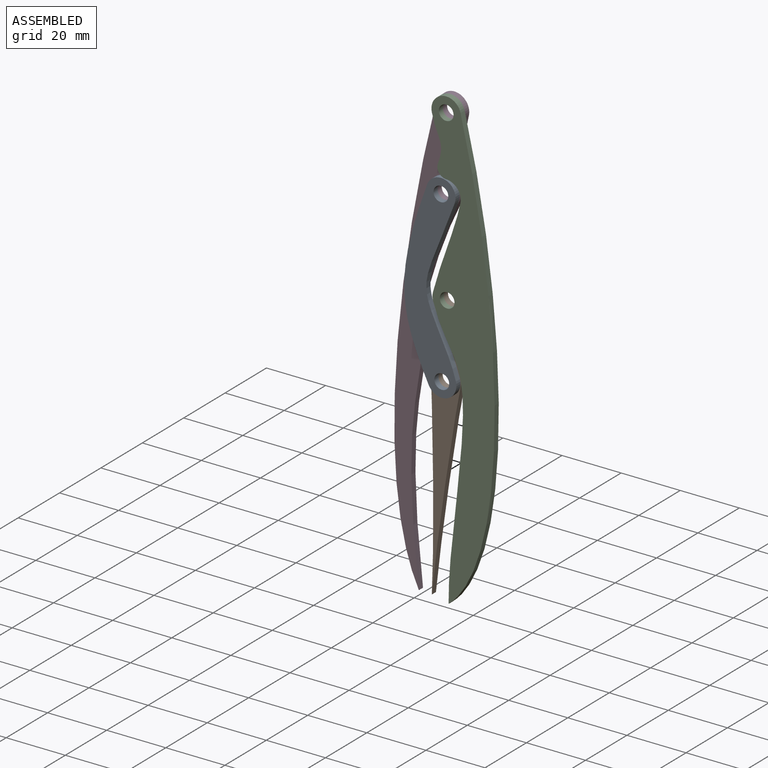
[diagram: assembled view]
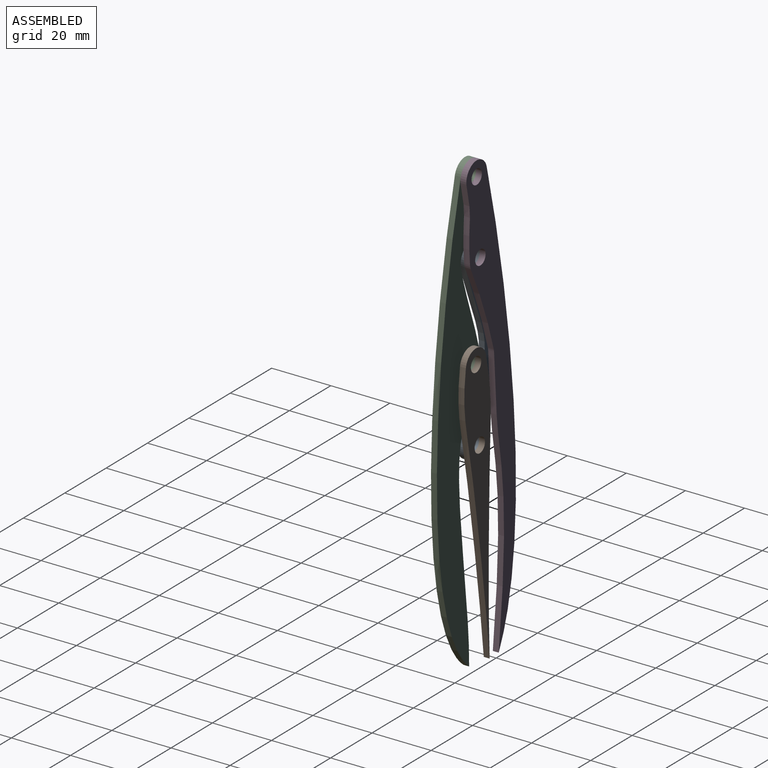
[diagram: assembled view, second angle]
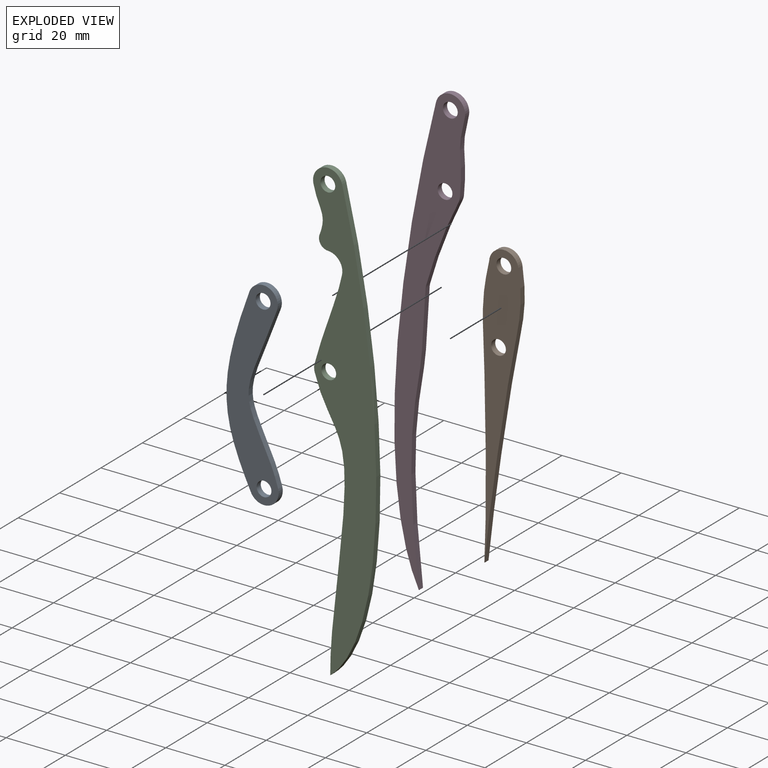
[diagram: exploded view]
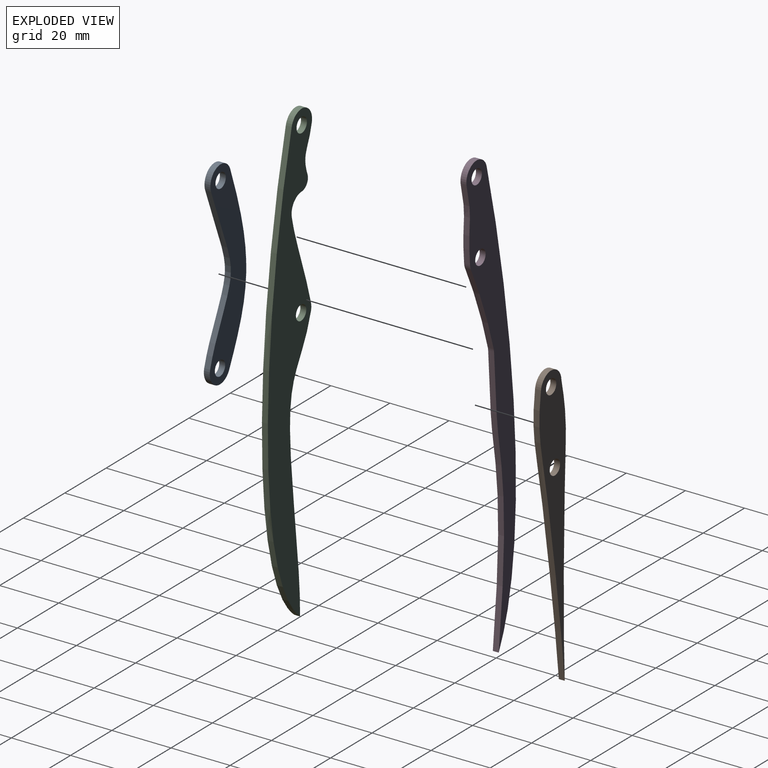
[diagram: exploded view, second angle]
ASSEMBLY  parts=4 mates=4
PART A: 8 faces, bbox 20.2x2x67.2 mm
  f0: extruded ~61.27x8.24mm, area 127.6mm2, adj f1,f5,f6,f7
  f1: cylinder r=4.95mm len=9.41mm, axis (0,1,0), area 29.3mm2, adj f0,f2,f6,f7
  f2: extruded ~54.26x10.02mm, area 115.9mm2, adj f1,f5,f6,f7
  f3: cylinder r=2.5mm len=5mm, axis (0,1,0), area 31.4mm2, adj f6,f7
  f4: cylinder r=2.5mm len=5mm, axis (0,1,0), area 31.4mm2, adj f6,f7
  f5: cylinder r=4.95mm len=9.56mm, axis (0,1,0), area 31mm2, adj f0,f2,f6,f7
  f6: plane 67.2x20.18mm, normal (0,-1,0), area 587.9mm2, adj f0,f1,f2,f3,f4,f5
  f7: plane 67.2x20.18mm, normal (0,1,0), area 587.9mm2, adj f0,f1,f2,f3,f4,f5
PART B: 7 faces, bbox 14.2x2x97.7 mm
  f0: cylinder r=4.97mm len=9.82mm, axis (0,1,0), area 29.1mm2, adj f1,f4,f5,f6
  f1: extruded ~92.7x5.65mm, area 186mm2, adj f0,f4,f5,f6
  f2: cylinder r=2.5mm len=5mm, axis (0,1,0), area 31.4mm2, adj f5,f6
  f3: cylinder r=2.5mm len=5mm, axis (0,1,0), area 31.4mm2, adj f5,f6
  f4: extruded ~93.75x6.83mm, area 188.3mm2, adj f0,f1,f5,f6
  f5: plane 97.66x14.17mm, normal (0,-1,0), area 579mm2, adj f0,f1,f2,f3,f4
  f6: plane 97.66x14.17mm, normal (0,1,0), area 579mm2, adj f0,f1,f2,f3,f4
PART C: 12 faces, bbox 27.7x2x155 mm
  f0: extruded ~151.22x15.58mm, area 311.5mm2, adj f1,f9,f10,f11
  f1: cylinder r=5mm len=9.85mm, axis (0,1,0), area 31mm2, adj f0,f2,f10,f11
  f2: extruded ~15.11x3.17mm, area 31.6mm2, adj f1,f3,f10,f11
  f3: cylinder r=3.09mm len=4.2mm, axis (0,1,0), area 11.8mm2, adj f2,f4,f10,f11
  f4: cylinder r=5.05mm len=6mm, axis (0,1,0), area 17.5mm2, adj f3,f5,f10,f11
  f5: extruded ~29.75x9.32mm, area 62.4mm2, adj f4,f6,f10,f11
  f6: cylinder r=4.95mm len=2.53mm, axis (0,1,0), area 5.1mm2, adj f5,f9,f10,f11
  f7: cylinder r=2.5mm len=5mm, axis (0,1,0), area 31.4mm2, adj f10,f11
  f8: cylinder r=2.5mm len=5mm, axis (0,1,0), area 31.4mm2, adj f10,f11
  f9: extruded ~91.36x10.14mm, area 187.3mm2, adj f0,f6,f10,f11
  f10: plane 155x27.73mm, normal (0,-1,0), area 1676.3mm2, adj f0,f1,f2,f3,f4,f5,f6,f7
  f11: plane 155x27.73mm, normal (0,1,0), area 1676.3mm2, adj f0,f1,f2,f3,f4,f5,f6,f7
PART D: 11 faces, bbox 22.8x2x155 mm
  f0: extruded ~24.6x2mm, area 49.4mm2, adj f1,f7,f9,f10
  f1: cylinder r=5mm len=9.92mm, axis (0,1,0), area 31.5mm2, adj f0,f2,f9,f10
  f2: extruded ~150.9x12.11mm, area 306.3mm2, adj f1,f3,f9,f10
  f3: extruded ~92.7x5.35mm, area 186.2mm2, adj f2,f4,f9,f10
  f4: cylinder r=4.95mm len=2mm, axis (0,1,0), area 1.8mm2, adj f3,f5,f9,f10
  f5: extruded ~28.97x9.05mm, area 60.8mm2, adj f4,f7,f9,f10
  f6: cylinder r=2.5mm len=5mm, axis (0,1,0), area 31.4mm2, adj f9,f10
  f7: cylinder r=5.05mm len=2mm, axis (0,1,0), area 3.8mm2, adj f0,f5,f9,f10
  f8: cylinder r=2.5mm len=5mm, axis (0,1,0), area 31.4mm2, adj f9,f10
  f9: plane 155x22.79mm, normal (0,-1,0), area 1168.1mm2, adj f0,f1,f2,f3,f4,f5,f6,f7
  f10: plane 155x22.79mm, normal (0,1,0), area 1168.1mm2, adj f0,f1,f2,f3,f4,f5,f6,f7
PLACE A t=(-9.41,0,72.78)mm
PLACE B rot(axis=(0,1,0),3.8deg) t=(-3.99,2,72.61)mm
PLACE C t=(-7.75,0,72.72)mm fixed
PLACE D rot(axis=(0,1,0),3.8deg) t=(-7.75,2,72.72)mm
MATE revolute B.f0 <-> C.f6  axis (0,1,0) through (-7.44,0,15.42)mm
MATE revolute B.f3 <-> A.f1  axis (0,1,0) through (-9.24,0,-9.92)mm
MATE revolute D.f7 <-> A.f3  axis (0,1,0) through (-9.55,0,47.38)mm
MATE revolute C.f7 <-> D.f6  axis (0,1,0) through (-7.75,0,72.72)mm
